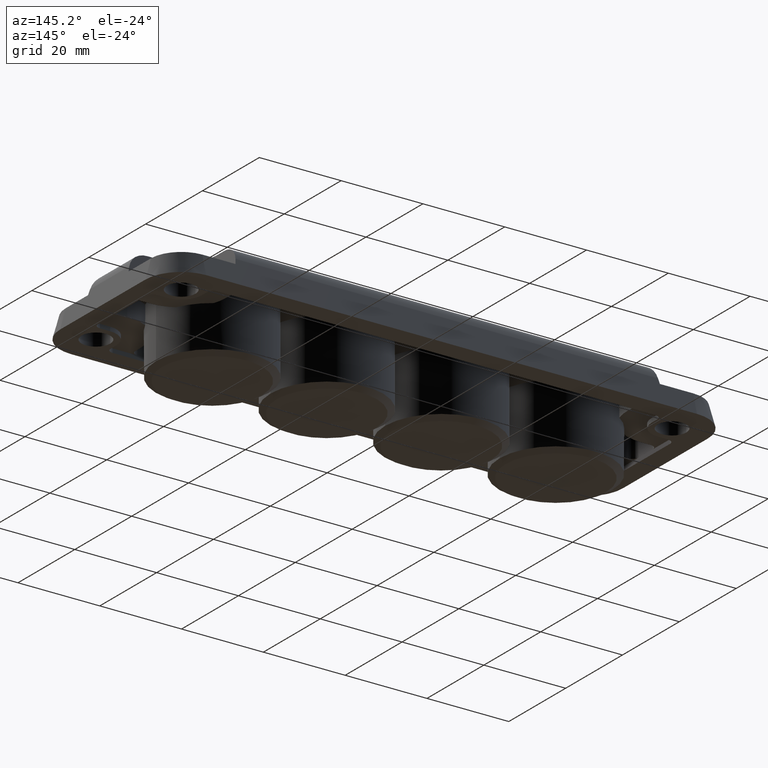
[diagram: clean part render]
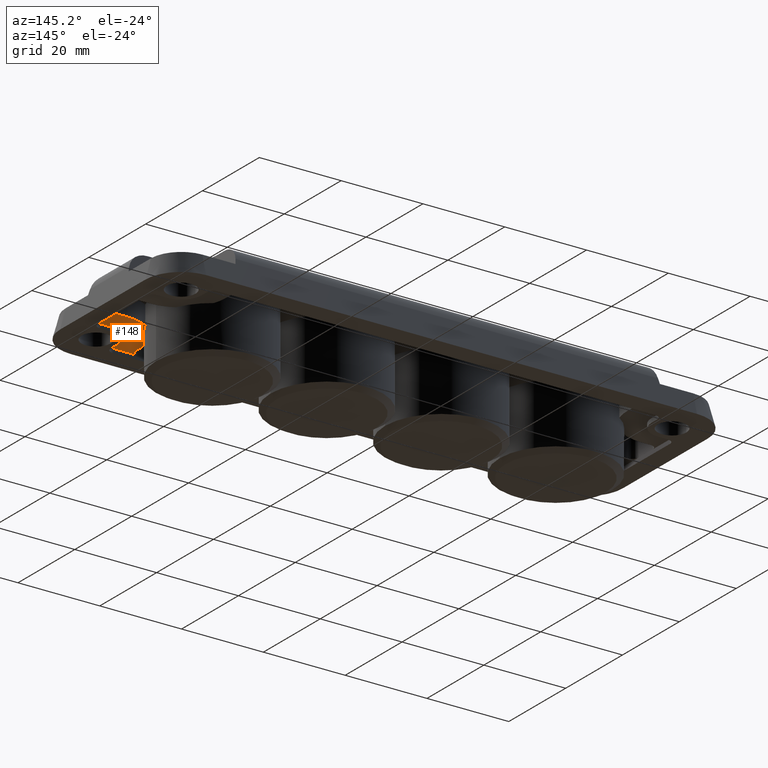
[diagram: same view with one face highlighted and labeled with its STEP entity id]
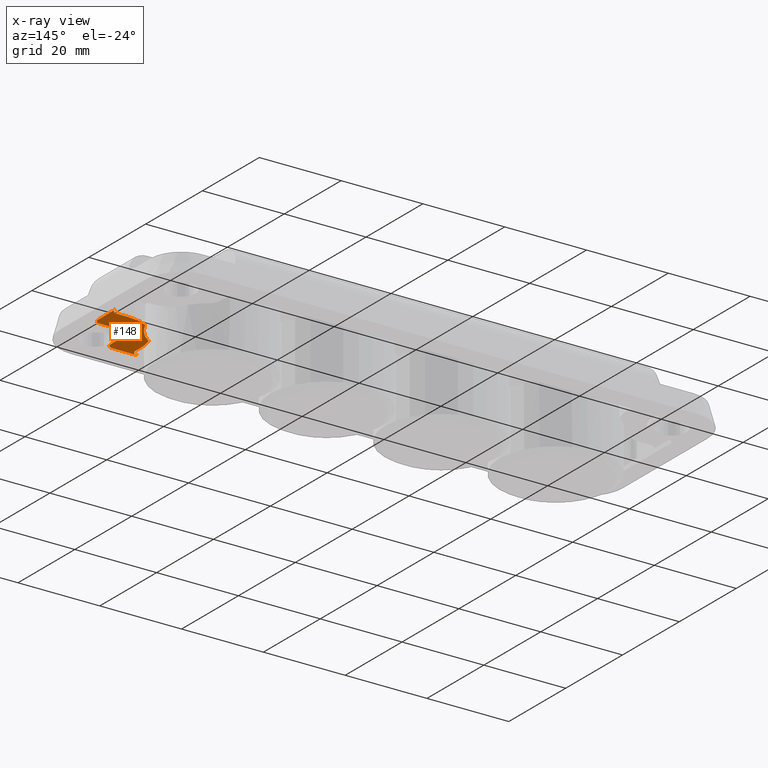
[diagram: x-ray of the same camera — body ghosted, the highlighted face saturated]
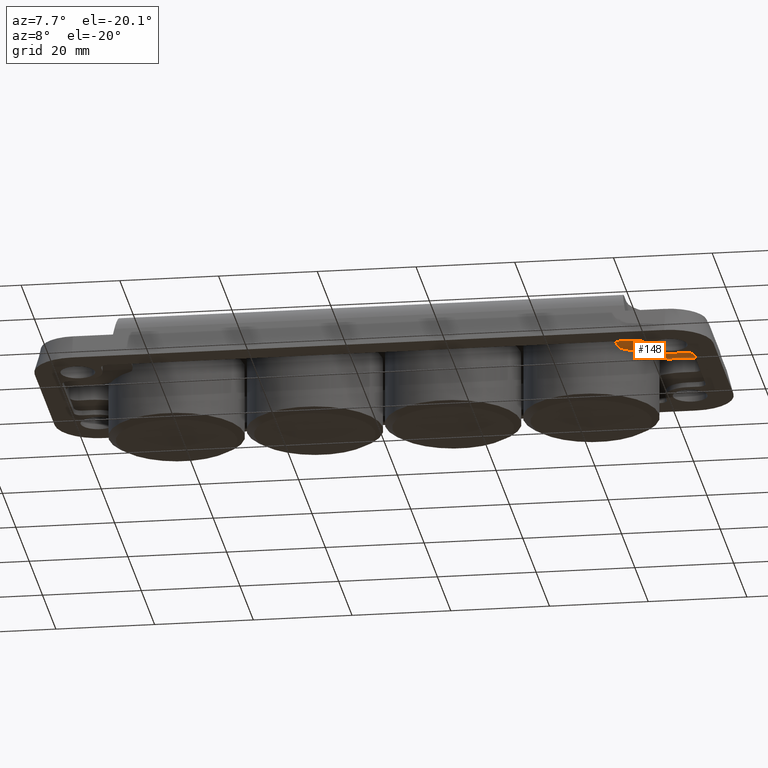
[diagram: same view with one face highlighted and labeled with its STEP entity id]
A machine part, auxiliary view. The second image highlights one B-rep face of the part: STEP entity #148.
The next image is the same camera in x-ray: the body ghosted, the highlighted face saturated — about 0% of this face is hidden behind the body in this view.
A second angle (auxiliary view) of the same face is appended — the face is thin or edge-on in the first view.
In plain terms, the highlighted planar face has unit normal (0, 0, -1).
Its self-contained STEP definition (entity closure, byte-faithful):
#32 = EDGE_CURVE ( 'NONE', #2149, #1686, #2864, .T. ) ;
#127 = EDGE_CURVE ( 'NONE', #1844, #3697, #1442, .T. ) ;
#129 = CARTESIAN_POINT ( 'NONE',  ( 54.98254493507177900, -17.00000000000003200, 1.000000000000000000 ) ) ;
#138 = DIRECTION ( 'NONE',  ( -1.000000000000000000, 0.0000000000000000000, 0.0000000000000000000 ) ) ;
#148 = ADVANCED_FACE ( 'NONE', ( #776 ), #188, .T. ) ;
#159 = EDGE_CURVE ( 'NONE', #1565, #2442, #2121, .T. ) ;
#161 = VERTEX_POINT ( 'NONE', #2669 ) ;
#183 = DIRECTION ( 'NONE',  ( -1.000000000000000000, 0.0000000000000000000, 0.0000000000000000000 ) ) ;
#188 = PLANE ( 'NONE',  #2198 ) ;
#219 = CARTESIAN_POINT ( 'NONE',  ( 60.00000000000000700, 15.00000000000000700, 1.000000000000000000 ) ) ;
#311 = VECTOR ( 'NONE', #2810, 1000.000000000000000 ) ;
#332 = ORIENTED_EDGE ( 'NONE', *, *, #2019, .F. ) ;
#354 = DIRECTION ( 'NONE',  ( 0.0000000000000000000, 0.0000000000000000000, -1.000000000000000000 ) ) ;
#498 = DIRECTION ( 'NONE',  ( 3.469446951953593300E-015, -1.000000000000000000, 0.0000000000000000000 ) ) ;
#506 = AXIS2_PLACEMENT_3D ( 'NONE', #1305, #3521, #3803 ) ;
#641 = ORIENTED_EDGE ( 'NONE', *, *, #2067, .T. ) ;
#702 = LINE ( 'NONE', #2216, #311 ) ;
#724 = CARTESIAN_POINT ( 'NONE',  ( 60.00000000000000700, -18.48254493507177900, 1.000000000000000000 ) ) ;
#771 = ORIENTED_EDGE ( 'NONE', *, *, #3347, .T. ) ;
#772 = CARTESIAN_POINT ( 'NONE',  ( 47.49999999999999300, -18.48254493507176800, 1.000000000000000000 ) ) ;
#776 = FACE_OUTER_BOUND ( 'NONE', #1818, .T. ) ;
#806 = CARTESIAN_POINT ( 'NONE',  ( 63.98254493507180000, -2.499999999999997300, 1.000000000000000000 ) ) ;
#922 = VECTOR ( 'NONE', #2031, 1000.000000000000000 ) ;
#935 = VECTOR ( 'NONE', #138, 1000.000000000000000 ) ;
#1026 = CIRCLE ( 'NONE', #3865, 5.017455064928205900 ) ;
#1043 = CARTESIAN_POINT ( 'NONE',  ( 49.58144632283981000, -11.47101441259223100, 1.000000000000000400 ) ) ;
#1091 = ORIENTED_EDGE ( 'NONE', *, *, #1687, .F. ) ;
#1096 = CARTESIAN_POINT ( 'NONE',  ( 60.00000000000000000, -4.000000000000012400, 1.000000000000000000 ) ) ;
#1100 = DIRECTION ( 'NONE',  ( 0.0000000000000000000, -1.000000000000000000, 0.0000000000000000000 ) ) ;
#1115 = VERTEX_POINT ( 'NONE', #3845 ) ;
#1180 = AXIS2_PLACEMENT_3D ( 'NONE', #3267, #1664, #2575 ) ;
#1248 = ORIENTED_EDGE ( 'NONE', *, *, #3928, .F. ) ;
#1305 = CARTESIAN_POINT ( 'NONE',  ( 60.00000000000000000, -14.99999999999999300, 1.000000000000000000 ) ) ;
#1327 = LINE ( 'NONE', #3222, #935 ) ;
#1363 = DIRECTION ( 'NONE',  ( 0.0000000000000000000, 0.0000000000000000000, -1.000000000000000000 ) ) ;
#1442 = LINE ( 'NONE', #3295, #1924 ) ;
#1483 = VERTEX_POINT ( 'NONE', #3525 ) ;
#1498 = CIRCLE ( 'NONE', #3735, 13.74999999999999800 ) ;
#1528 = VERTEX_POINT ( 'NONE', #1043 ) ;
#1556 = LINE ( 'NONE', #724, #2175 ) ;
#1565 = VERTEX_POINT ( 'NONE', #806 ) ;
#1577 = CARTESIAN_POINT ( 'NONE',  ( 63.98254493507178600, -8.500000000000024900, 1.000000000000000000 ) ) ;
#1664 = DIRECTION ( 'NONE',  ( 0.0000000000000000000, 0.0000000000000000000, -1.000000000000000000 ) ) ;
#1686 = VERTEX_POINT ( 'NONE', #772 ) ;
#1687 = EDGE_CURVE ( 'NONE', #1565, #161, #3544, .T. ) ;
#1709 = ORIENTED_EDGE ( 'NONE', *, *, #3869, .F. ) ;
#1738 = LINE ( 'NONE', #1096, #922 ) ;
#1818 = EDGE_LOOP ( 'NONE', ( #1709, #3301, #1248, #1091, #3867, #2118, #641, #771, #2492, #3759, #3355, #3894, #332, #2002 ) ) ;
#1832 = DIRECTION ( 'NONE',  ( 1.000000000000000000, 0.0000000000000000000, 0.0000000000000000000 ) ) ;
#1844 = VERTEX_POINT ( 'NONE', #3437 ) ;
#1924 = VECTOR ( 'NONE', #498, 1000.000000000000000 ) ;
#1950 = CARTESIAN_POINT ( 'NONE',  ( 62.50000000000000000, -9.982544935071803800, 1.000000000000000000 ) ) ;
#1961 = CARTESIAN_POINT ( 'NONE',  ( 53.50000000000000000, -17.00000000000003200, 1.000000000000000000 ) ) ;
#2002 = ORIENTED_EDGE ( 'NONE', *, *, #3821, .F. ) ;
#2019 = EDGE_CURVE ( 'NONE', #2506, #2149, #702, .T. ) ;
#2023 = DIRECTION ( 'NONE',  ( 0.0000000000000000000, 0.0000000000000000000, -1.000000000000000000 ) ) ;
#2031 = DIRECTION ( 'NONE',  ( -1.000000000000000000, -0.0000000000000000000, -0.0000000000000000000 ) ) ;
#2067 = EDGE_CURVE ( 'NONE', #3783, #1115, #1327, .T. ) ;
#2096 = EDGE_CURVE ( 'NONE', #3697, #1483, #2343, .T. ) ;
#2118 = ORIENTED_EDGE ( 'NONE', *, *, #2822, .T. ) ;
#2121 = LINE ( 'NONE', #3634, #2213 ) ;
#2135 = CARTESIAN_POINT ( 'NONE',  ( 60.00000000000000000, -14.99999999999999300, 1.000000000000000000 ) ) ;
#2149 = VERTEX_POINT ( 'NONE', #2243 ) ;
#2159 = VERTEX_POINT ( 'NONE', #2302 ) ;
#2175 = VECTOR ( 'NONE', #3514, 1000.000000000000000 ) ;
#2181 = CARTESIAN_POINT ( 'NONE',  ( 49.00000000000000700, -15.00000000000001400, 1.000000000000000000 ) ) ;
#2198 = AXIS2_PLACEMENT_3D ( 'NONE', #219, #2023, #3908 ) ;
#2200 = CARTESIAN_POINT ( 'NONE',  ( 62.50000000000000000, -8.500000000000019500, 1.000000000000000000 ) ) ;
#2213 = VECTOR ( 'NONE', #1100, 1000.000000000000000 ) ;
#2216 = CARTESIAN_POINT ( 'NONE',  ( 49.00000000000000000, -15.00000000000001600, 1.000000000000000000 ) ) ;
#2243 = CARTESIAN_POINT ( 'NONE',  ( 49.00000000000000000, -16.98254493507175800, 1.000000000000000000 ) ) ;
#2270 = DIRECTION ( 'NONE',  ( -1.000000000000000000, 0.0000000000000000000, 0.0000000000000000000 ) ) ;
#2302 = CARTESIAN_POINT ( 'NONE',  ( 60.00000000000000000, -4.000000000000012400, 1.000000000000000000 ) ) ;
#2343 = CIRCLE ( 'NONE', #3060, 1.482544935071758600 ) ;
#2360 = CARTESIAN_POINT ( 'NONE',  ( 62.48254493507179300, -2.500000000000012000, 1.000000000000000000 ) ) ;
#2413 = DIRECTION ( 'NONE',  ( -1.000000000000000000, 0.0000000000000000000, 0.0000000000000000000 ) ) ;
#2442 = VERTEX_POINT ( 'NONE', #1577 ) ;
#2492 = ORIENTED_EDGE ( 'NONE', *, *, #127, .T. ) ;
#2506 = VERTEX_POINT ( 'NONE', #2181 ) ;
#2575 = DIRECTION ( 'NONE',  ( -1.000000000000000000, 0.0000000000000000000, 0.0000000000000000000 ) ) ;
#2617 = DIRECTION ( 'NONE',  ( -1.000000000000000000, 0.0000000000000000000, 0.0000000000000000000 ) ) ;
#2622 = EDGE_CURVE ( 'NONE', #2159, #3564, #3681, .T. ) ;
#2669 = CARTESIAN_POINT ( 'NONE',  ( 62.48254493507178600, -4.000000000000016900, 1.000000000000000000 ) ) ;
#2810 = DIRECTION ( 'NONE',  ( 0.0000000000000000000, -1.000000000000000000, 0.0000000000000000000 ) ) ;
#2822 = EDGE_CURVE ( 'NONE', #2442, #3783, #3126, .T. ) ;
#2864 = CIRCLE ( 'NONE', #1180, 1.500000000000001300 ) ;
#2906 = DIRECTION ( 'NONE',  ( -0.0000000000000000000, -0.0000000000000000000, 1.000000000000000000 ) ) ;
#2929 = DIRECTION ( 'NONE',  ( -1.000000000000000000, 0.0000000000000000000, 0.0000000000000000000 ) ) ;
#2971 = AXIS2_PLACEMENT_3D ( 'NONE', #2360, #4010, #2413 ) ;
#3060 = AXIS2_PLACEMENT_3D ( 'NONE', #1961, #1363, #2270 ) ;
#3111 = AXIS2_PLACEMENT_3D ( 'NONE', #2200, #354, #2617 ) ;
#3126 = CIRCLE ( 'NONE', #3111, 1.482544935071786100 ) ;
#3222 = CARTESIAN_POINT ( 'NONE',  ( 60.00000000000000700, -9.982544935071803800, 1.000000000000000000 ) ) ;
#3225 = DIRECTION ( 'NONE',  ( 0.0000000000000000000, 0.0000000000000000000, -1.000000000000000000 ) ) ;
#3237 = EDGE_CURVE ( 'NONE', #1483, #1686, #1556, .T. ) ;
#3267 = CARTESIAN_POINT ( 'NONE',  ( 47.50000000000000000, -16.98254493507176800, 1.000000000000000000 ) ) ;
#3295 = CARTESIAN_POINT ( 'NONE',  ( 54.98254493507166500, 14.99999999999998900, 1.000000000000000000 ) ) ;
#3301 = ORIENTED_EDGE ( 'NONE', *, *, #2622, .F. ) ;
#3347 = EDGE_CURVE ( 'NONE', #1115, #1844, #1026, .T. ) ;
#3355 = ORIENTED_EDGE ( 'NONE', *, *, #3237, .T. ) ;
#3437 = CARTESIAN_POINT ( 'NONE',  ( 54.98254493507179300, -15.00000000000001600, 1.000000000000000000 ) ) ;
#3514 = DIRECTION ( 'NONE',  ( -1.000000000000000000, 0.0000000000000000000, 0.0000000000000000000 ) ) ;
#3521 = DIRECTION ( 'NONE',  ( 0.0000000000000000000, 0.0000000000000000000, 1.000000000000000000 ) ) ;
#3525 = CARTESIAN_POINT ( 'NONE',  ( 53.50000000000000000, -18.48254493507179000, 1.000000000000000000 ) ) ;
#3544 = CIRCLE ( 'NONE', #2971, 1.500000000000001300 ) ;
#3550 = AXIS2_PLACEMENT_3D ( 'NONE', #2135, #3726, #1832 ) ;
#3564 = VERTEX_POINT ( 'NONE', #3930 ) ;
#3573 = CIRCLE ( 'NONE', #506, 10.99999999999998200 ) ;
#3597 = CARTESIAN_POINT ( 'NONE',  ( 60.00000000000000000, -14.99999999999999300, 1.000000000000000000 ) ) ;
#3634 = CARTESIAN_POINT ( 'NONE',  ( 63.98254493507178600, 15.00000000000000700, 1.000000000000000000 ) ) ;
#3681 = CIRCLE ( 'NONE', #3550, 10.99999999999998200 ) ;
#3697 = VERTEX_POINT ( 'NONE', #129 ) ;
#3726 = DIRECTION ( 'NONE',  ( 0.0000000000000000000, 0.0000000000000000000, 1.000000000000000000 ) ) ;
#3735 = AXIS2_PLACEMENT_3D ( 'NONE', #3938, #3225, #183 ) ;
#3759 = ORIENTED_EDGE ( 'NONE', *, *, #2096, .T. ) ;
#3783 = VERTEX_POINT ( 'NONE', #1950 ) ;
#3803 = DIRECTION ( 'NONE',  ( 1.000000000000000000, 0.0000000000000000000, 0.0000000000000000000 ) ) ;
#3821 = EDGE_CURVE ( 'NONE', #1528, #2506, #3573, .T. ) ;
#3845 = CARTESIAN_POINT ( 'NONE',  ( 60.00000000000000700, -9.982544935071803800, 1.000000000000000000 ) ) ;
#3865 = AXIS2_PLACEMENT_3D ( 'NONE', #3597, #2906, #2929 ) ;
#3867 = ORIENTED_EDGE ( 'NONE', *, *, #159, .T. ) ;
#3869 = EDGE_CURVE ( 'NONE', #3564, #1528, #1498, .T. ) ;
#3894 = ORIENTED_EDGE ( 'NONE', *, *, #32, .F. ) ;
#3908 = DIRECTION ( 'NONE',  ( -1.000000000000000000, 0.0000000000000000000, -0.0000000000000000000 ) ) ;
#3928 = EDGE_CURVE ( 'NONE', #161, #2159, #1738, .T. ) ;
#3930 = CARTESIAN_POINT ( 'NONE',  ( 54.65011105420938300, -5.388616734948747900, 1.000000000000000000 ) ) ;
#3938 = CARTESIAN_POINT ( 'NONE',  ( 42.00000000000000000, -1.328571821804666600E-031, 1.000000000000000900 ) ) ;
#4010 = DIRECTION ( 'NONE',  ( 0.0000000000000000000, 0.0000000000000000000, -1.000000000000000000 ) ) ;